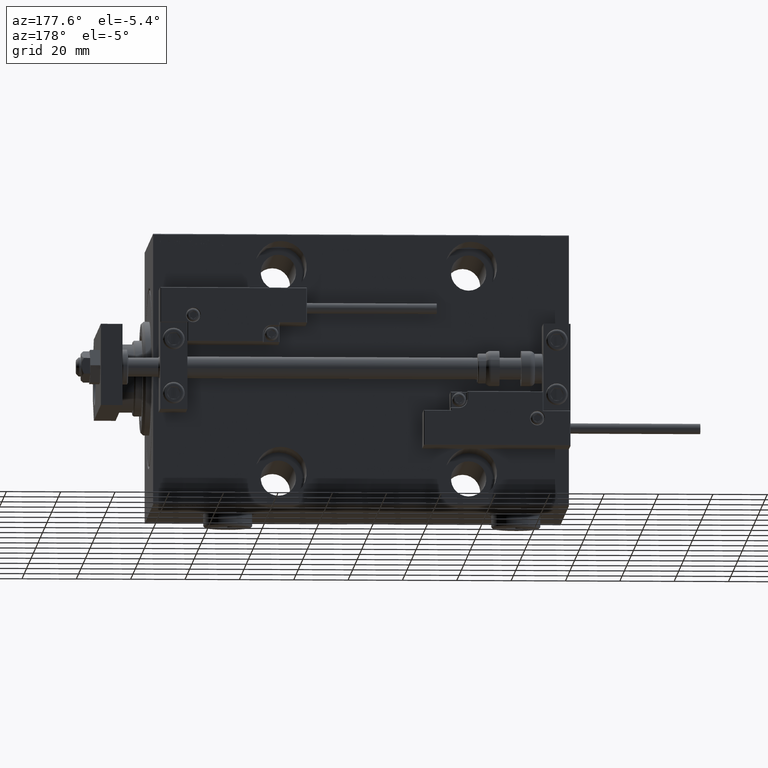
[diagram: clean part render]
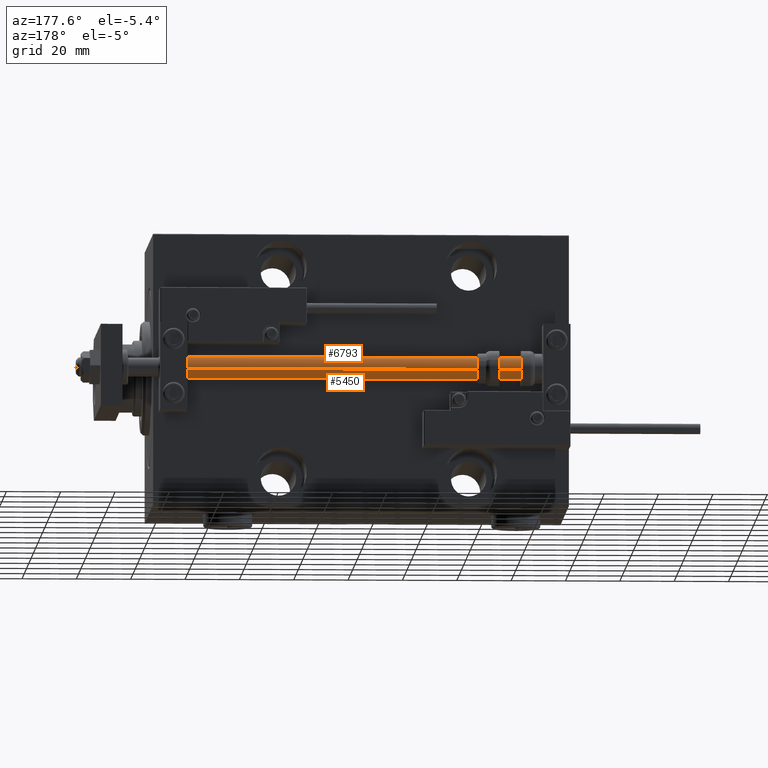
[diagram: same view with one multi-face feature highlighted, each face labeled with its STEP entity id]
A machine part, auxiliary view. The highlighted faces form ONE feature: a constant-radius fillet chain: 2 tangent blend faces with common blend radius 4 mm. The faces share edges in the B-rep.
Their STEP definitions:
[1] entity #6793 (Cylinder):
#488 = EDGE_CURVE ( 'NONE', #4736, #45690, #42749, .T. ) ;
#1752 = EDGE_LOOP ( 'NONE', ( #47686, #41106, #34153, #18026 ) ) ;
#4736 = VERTEX_POINT ( 'NONE', #35798 ) ;
#5590 = DIRECTION ( 'NONE',  ( 1.000000000000000000, 0.000000000000000000, 0.000000000000000000 ) ) ;
#6793 = ADVANCED_FACE ( 'NONE', ( #36417 ), #16692, .T. ) ;
#7971 = VERTEX_POINT ( 'NONE', #50702 ) ;
#8635 = EDGE_CURVE ( 'NONE', #13291, #45690, #24274, .T. ) ;
#8701 = CARTESIAN_POINT ( 'NONE',  ( 4.000000000000000000, 4.898587196589412829E-16, 153.0000000000000000 ) ) ;
#9567 = DIRECTION ( 'NONE',  ( 0.000000000000000000, 0.000000000000000000, 1.000000000000000000 ) ) ;
#10278 = CARTESIAN_POINT ( 'NONE',  ( 4.000000000000000000, 4.898587196589412829E-16, 2.000000000000029310 ) ) ;
#13291 = VERTEX_POINT ( 'NONE', #30243 ) ;
#13411 = LINE ( 'NONE', #41456, #21879 ) ;
#13896 = CARTESIAN_POINT ( 'NONE',  ( 0.000000000000000000, 0.000000000000000000, 2.000000000000029310 ) ) ;
#15668 = CARTESIAN_POINT ( 'NONE',  ( 0.000000000000000000, 0.000000000000000000, 153.0000000000000000 ) ) ;
#16692 = CYLINDRICAL_SURFACE ( 'NONE', #47078, 4.000000000000000000 ) ;
#18026 = ORIENTED_EDGE ( 'NONE', *, *, #488, .T. ) ;
#21879 = VECTOR ( 'NONE', #29218, 1000.000000000000000 ) ;
#23452 = DIRECTION ( 'NONE',  ( -1.000000000000000000, 0.000000000000000000, 0.000000000000000000 ) ) ;
#24173 = EDGE_CURVE ( 'NONE', #7971, #4736, #13411, .T. ) ;
#24274 = LINE ( 'NONE', #8701, #41363 ) ;
#29010 = DIRECTION ( 'NONE',  ( 1.000000000000000000, 0.000000000000000000, 0.000000000000000000 ) ) ;
#29218 = DIRECTION ( 'NONE',  ( -0.000000000000000000, -0.000000000000000000, -1.000000000000000000 ) ) ;
#30243 = CARTESIAN_POINT ( 'NONE',  ( 4.000000000000000000, 4.898587196589412829E-16, 153.0000000000000000 ) ) ;
#33873 = DIRECTION ( 'NONE',  ( -0.000000000000000000, -0.000000000000000000, 1.000000000000000000 ) ) ;
#33945 = CIRCLE ( 'NONE', #39781, 4.000000000000000000 ) ;
#34153 = ORIENTED_EDGE ( 'NONE', *, *, #24173, .T. ) ;
#35798 = CARTESIAN_POINT ( 'NONE',  ( -4.000000000000000000, 0.000000000000000000, 2.000000000000029310 ) ) ;
#36417 = FACE_OUTER_BOUND ( 'NONE', #1752, .T. ) ;
#39781 = AXIS2_PLACEMENT_3D ( 'NONE', #48295, #9567, #29010 ) ;
#41106 = ORIENTED_EDGE ( 'NONE', *, *, #44679, .F. ) ;
#41363 = VECTOR ( 'NONE', #51284, 1000.000000000000000 ) ;
#41456 = CARTESIAN_POINT ( 'NONE',  ( -4.000000000000000000, 0.000000000000000000, 153.0000000000000000 ) ) ;
#42749 = CIRCLE ( 'NONE', #46870, 4.000000000000000000 ) ;
#44488 = DIRECTION ( 'NONE',  ( -0.000000000000000000, -0.000000000000000000, -1.000000000000000000 ) ) ;
#44679 = EDGE_CURVE ( 'NONE', #7971, #13291, #33945, .T. ) ;
#45690 = VERTEX_POINT ( 'NONE', #10278 ) ;
#46870 = AXIS2_PLACEMENT_3D ( 'NONE', #13896, #33873, #5590 ) ;
#47078 = AXIS2_PLACEMENT_3D ( 'NONE', #15668, #44488, #23452 ) ;
#47686 = ORIENTED_EDGE ( 'NONE', *, *, #8635, .F. ) ;
#48295 = CARTESIAN_POINT ( 'NONE',  ( 0.000000000000000000, 0.000000000000000000, 153.0000000000000000 ) ) ;
#50702 = CARTESIAN_POINT ( 'NONE',  ( -4.000000000000000000, 0.000000000000000000, 153.0000000000000000 ) ) ;
#51284 = DIRECTION ( 'NONE',  ( -0.000000000000000000, -0.000000000000000000, -1.000000000000000000 ) ) ;
[2] entity #5450 (Cylinder):
#716 = EDGE_CURVE ( 'NONE', #45690, #4736, #49405, .T. ) ;
#4675 = ORIENTED_EDGE ( 'NONE', *, *, #8635, .T. ) ;
#4736 = VERTEX_POINT ( 'NONE', #35798 ) ;
#5450 = ADVANCED_FACE ( 'NONE', ( #11056 ), #46382, .T. ) ;
#5615 = EDGE_CURVE ( 'NONE', #13291, #7971, #51112, .T. ) ;
#6589 = DIRECTION ( 'NONE',  ( 1.000000000000000000, 0.000000000000000000, 0.000000000000000000 ) ) ;
#7787 = ORIENTED_EDGE ( 'NONE', *, *, #24173, .F. ) ;
#7971 = VERTEX_POINT ( 'NONE', #50702 ) ;
#8500 = EDGE_LOOP ( 'NONE', ( #35287, #4675, #26134, #7787 ) ) ;
#8635 = EDGE_CURVE ( 'NONE', #13291, #45690, #24274, .T. ) ;
#8701 = CARTESIAN_POINT ( 'NONE',  ( 4.000000000000000000, 4.898587196589412829E-16, 153.0000000000000000 ) ) ;
#10278 = CARTESIAN_POINT ( 'NONE',  ( 4.000000000000000000, 4.898587196589412829E-16, 2.000000000000029310 ) ) ;
#11056 = FACE_OUTER_BOUND ( 'NONE', #8500, .T. ) ;
#13291 = VERTEX_POINT ( 'NONE', #30243 ) ;
#13411 = LINE ( 'NONE', #41456, #21879 ) ;
#15138 = CARTESIAN_POINT ( 'NONE',  ( 0.000000000000000000, 0.000000000000000000, 153.0000000000000000 ) ) ;
#18485 = CARTESIAN_POINT ( 'NONE',  ( 0.000000000000000000, 0.000000000000000000, 2.000000000000029310 ) ) ;
#18829 = DIRECTION ( 'NONE',  ( -0.000000000000000000, -0.000000000000000000, -1.000000000000000000 ) ) ;
#20414 = AXIS2_PLACEMENT_3D ( 'NONE', #26619, #18829, #42481 ) ;
#21879 = VECTOR ( 'NONE', #29218, 1000.000000000000000 ) ;
#24173 = EDGE_CURVE ( 'NONE', #7971, #4736, #13411, .T. ) ;
#24274 = LINE ( 'NONE', #8701, #41363 ) ;
#25253 = DIRECTION ( 'NONE',  ( -0.000000000000000000, -0.000000000000000000, 1.000000000000000000 ) ) ;
#26134 = ORIENTED_EDGE ( 'NONE', *, *, #716, .T. ) ;
#26619 = CARTESIAN_POINT ( 'NONE',  ( 0.000000000000000000, 0.000000000000000000, 153.0000000000000000 ) ) ;
#26969 = AXIS2_PLACEMENT_3D ( 'NONE', #18485, #25253, #45780 ) ;
#29218 = DIRECTION ( 'NONE',  ( -0.000000000000000000, -0.000000000000000000, -1.000000000000000000 ) ) ;
#30243 = CARTESIAN_POINT ( 'NONE',  ( 4.000000000000000000, 4.898587196589412829E-16, 153.0000000000000000 ) ) ;
#35287 = ORIENTED_EDGE ( 'NONE', *, *, #5615, .F. ) ;
#35798 = CARTESIAN_POINT ( 'NONE',  ( -4.000000000000000000, 0.000000000000000000, 2.000000000000029310 ) ) ;
#41363 = VECTOR ( 'NONE', #51284, 1000.000000000000000 ) ;
#41456 = CARTESIAN_POINT ( 'NONE',  ( -4.000000000000000000, 0.000000000000000000, 153.0000000000000000 ) ) ;
#42175 = DIRECTION ( 'NONE',  ( 0.000000000000000000, 0.000000000000000000, 1.000000000000000000 ) ) ;
#42481 = DIRECTION ( 'NONE',  ( -1.000000000000000000, 0.000000000000000000, 0.000000000000000000 ) ) ;
#45690 = VERTEX_POINT ( 'NONE', #10278 ) ;
#45780 = DIRECTION ( 'NONE',  ( 1.000000000000000000, 0.000000000000000000, 0.000000000000000000 ) ) ;
#46382 = CYLINDRICAL_SURFACE ( 'NONE', #20414, 4.000000000000000000 ) ;
#49405 = CIRCLE ( 'NONE', #26969, 4.000000000000000000 ) ;
#50299 = AXIS2_PLACEMENT_3D ( 'NONE', #15138, #42175, #6589 ) ;
#50702 = CARTESIAN_POINT ( 'NONE',  ( -4.000000000000000000, 0.000000000000000000, 153.0000000000000000 ) ) ;
#51112 = CIRCLE ( 'NONE', #50299, 4.000000000000000000 ) ;
#51284 = DIRECTION ( 'NONE',  ( -0.000000000000000000, -0.000000000000000000, -1.000000000000000000 ) ) ;